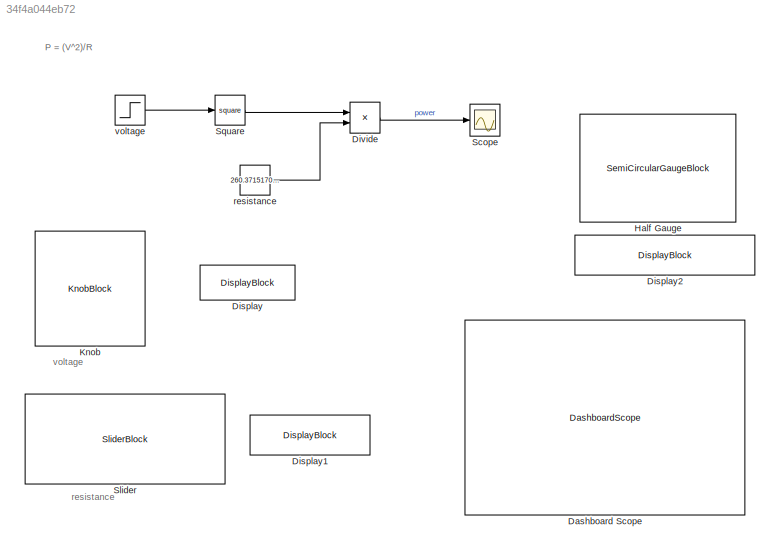
MODEL slx_34f4a044eb72
KIND model
CONFIG AbsTol = auto
CONFIG EnableMultiTasking = off
CONFIG FixedStep = 0.1
CONFIG MaxStep = auto
CONFIG MinStep = auto
CONFIG RelTol = 1e-3
CONFIG SampleTimeConstraint = Unconstrained
CONFIG SolverName = FixedStepAuto
CONFIG StartTime = 0.0
CONFIG StopTime = 200
BLOCK [DashboardScope] Dashboard Scope
  ScaleAtStop = off
  UpdateMode = Scroll
  Ymax = 100
  Ymin = 0
BLOCK [DisplayBlock] Display
  LabelPosition = Hide
  Transparency = 1
BLOCK [DisplayBlock] Display1
  LabelPosition = Hide
  Transparency = 1
BLOCK [DisplayBlock] Display2
  LabelPosition = Hide
  Transparency = 1
BLOCK [Product] Divide
  Inputs = */
BLOCK [SemiCircularGaugeBlock] Half Gauge
BLOCK [KnobBlock] Knob
  LabelPosition = Hide
BLOCK [Scope] Scope
  Floating = off
  NumInputPorts = 1
  ScopeSpecificationString = Simulink.scopes.TimeScopeBlockCfg('CurrentConfiguration', extmgr.ConfigurationSet(extmgr.Configuration('Core','General UI',true),extmgr.Configuration('Core','Source UI',true),extmgr.Configuration('Sources','WiredSimulink',true),extmgr.Configuration('Visuals','Time Domain',true),extmgr.Configuration('Tools','Plot Navigation',true),extmgr.Configuration('Tools','Measurements',true)),'Version','2022b'...<+1ch>
BLOCK [SliderBlock] Slider
  LabelPosition = Hide
  ScaleMax = 500
  ScaleMin = 100
BLOCK [Math] Square
  Operator = square
BLOCK [Constant] resistance
  Value = 260.3715170278638
BLOCK [Step] voltage
  After = 53.62579345703125
  SampleTime = 0
ANNOTATION (root): resistance
ANNOTATION (root): voltage
ANNOTATION (root): P = (V^2)/R
LINE Divide:1 -> Scope:1
LINE Square:1 -> Divide:1
LINE resistance:1 -> Divide:2
LINE voltage:1 -> Square:1
